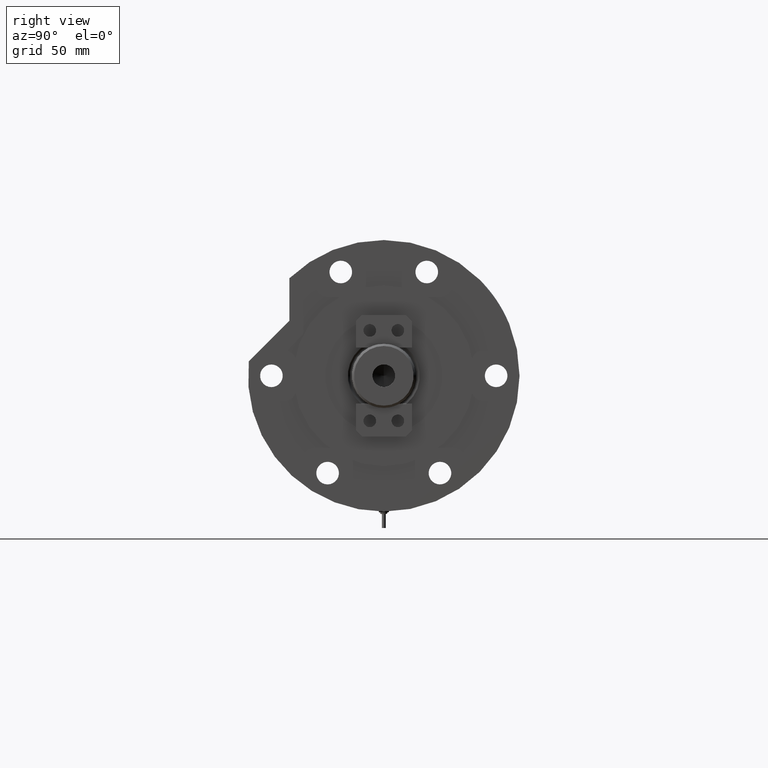
[diagram: clean part render]
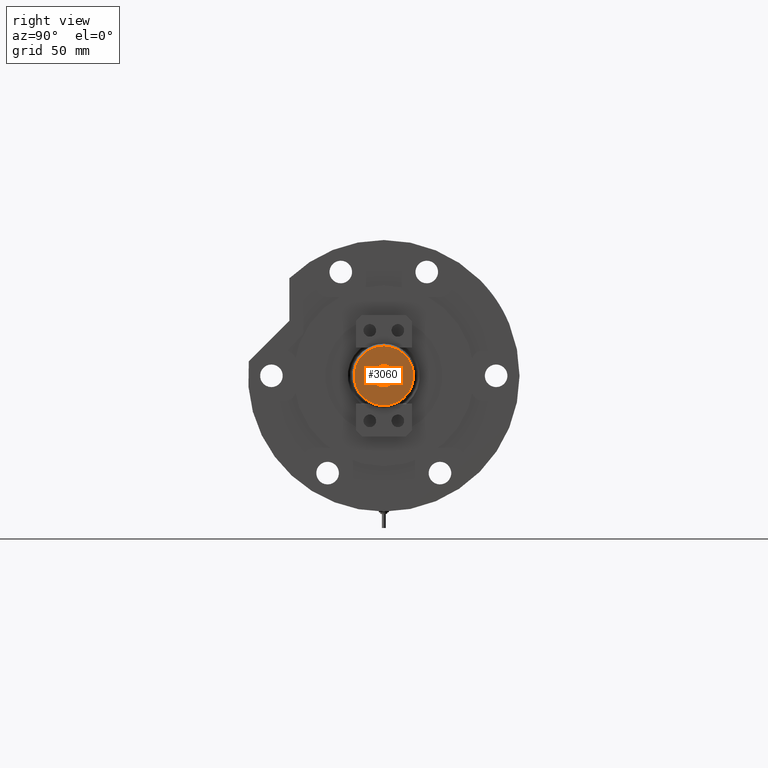
[diagram: same view with one face highlighted and labeled with its STEP entity id]
A machine part, right view. The second image highlights one B-rep face of the part: STEP entity #3060.
In plain terms, the highlighted planar face has unit normal (1, 0, -0).
Its self-contained STEP definition (entity closure, byte-faithful):
#64 = DIRECTION ( 'NONE',  ( 1.000000000000000000, 0.000000000000000000, 0.000000000000000000 ) ) ;
#462 = CIRCLE ( 'NONE', #7021, 7.249999999999999112 ) ;
#465 = CARTESIAN_POINT ( 'NONE',  ( 7.249999999999999112, 0.000000000000000000, 353.3000000000000114 ) ) ;
#467 = DIRECTION ( 'NONE',  ( 1.000000000000000000, 0.000000000000000000, 0.000000000000000000 ) ) ;
#662 = VERTEX_POINT ( 'NONE', #2108 ) ;
#696 = DIRECTION ( 'NONE',  ( -0.000000000000000000, -0.000000000000000000, 1.000000000000000000 ) ) ;
#837 = CIRCLE ( 'NONE', #1914, 19.10000000000000497 ) ;
#1320 = CARTESIAN_POINT ( 'NONE',  ( 0.000000000000000000, 0.000000000000000000, 353.3000000000000114 ) ) ;
#1854 = CIRCLE ( 'NONE', #2370, 19.10000000000000497 ) ;
#1914 = AXIS2_PLACEMENT_3D ( 'NONE', #2664, #2165, #4596 ) ;
#2091 = ORIENTED_EDGE ( 'NONE', *, *, #6346, .F. ) ;
#2108 = CARTESIAN_POINT ( 'NONE',  ( 19.10000000000000497, 2.424800662311759799E-15, 353.3000000000000114 ) ) ;
#2165 = DIRECTION ( 'NONE',  ( 0.000000000000000000, 0.000000000000000000, 1.000000000000000000 ) ) ;
#2370 = AXIS2_PLACEMENT_3D ( 'NONE', #1320, #5805, #64 ) ;
#2573 = DIRECTION ( 'NONE',  ( 1.000000000000000000, 0.000000000000000000, 0.000000000000000000 ) ) ;
#2664 = CARTESIAN_POINT ( 'NONE',  ( 0.000000000000000000, 0.000000000000000000, 353.3000000000000114 ) ) ;
#2927 = VERTEX_POINT ( 'NONE', #7327 ) ;
#3060 = ADVANCED_FACE ( 'NONE', ( #5720, #8280 ), #7065, .T. ) ;
#3369 = AXIS2_PLACEMENT_3D ( 'NONE', #3868, #7150, #6557 ) ;
#3639 = AXIS2_PLACEMENT_3D ( 'NONE', #5454, #4937, #467 ) ;
#3868 = CARTESIAN_POINT ( 'NONE',  ( 0.000000000000000000, 0.000000000000000000, 353.3000000000000114 ) ) ;
#3887 = VERTEX_POINT ( 'NONE', #7367 ) ;
#4274 = ORIENTED_EDGE ( 'NONE', *, *, #4762, .F. ) ;
#4596 = DIRECTION ( 'NONE',  ( 1.000000000000000000, 0.000000000000000000, 0.000000000000000000 ) ) ;
#4762 = EDGE_CURVE ( 'NONE', #7293, #3887, #8198, .T. ) ;
#4889 = ORIENTED_EDGE ( 'NONE', *, *, #5046, .T. ) ;
#4937 = DIRECTION ( 'NONE',  ( -0.000000000000000000, -0.000000000000000000, 1.000000000000000000 ) ) ;
#5046 = EDGE_CURVE ( 'NONE', #2927, #662, #837, .T. ) ;
#5275 = EDGE_LOOP ( 'NONE', ( #4889, #6778 ) ) ;
#5454 = CARTESIAN_POINT ( 'NONE',  ( 0.000000000000000000, 0.000000000000000000, 353.3000000000000114 ) ) ;
#5720 = FACE_OUTER_BOUND ( 'NONE', #5275, .T. ) ;
#5805 = DIRECTION ( 'NONE',  ( 0.000000000000000000, 0.000000000000000000, 1.000000000000000000 ) ) ;
#6346 = EDGE_CURVE ( 'NONE', #3887, #7293, #462, .T. ) ;
#6557 = DIRECTION ( 'NONE',  ( 1.000000000000000000, 0.000000000000000000, -0.000000000000000000 ) ) ;
#6778 = ORIENTED_EDGE ( 'NONE', *, *, #7939, .T. ) ;
#6852 = EDGE_LOOP ( 'NONE', ( #4274, #2091 ) ) ;
#7021 = AXIS2_PLACEMENT_3D ( 'NONE', #8286, #696, #2573 ) ;
#7065 = PLANE ( 'NONE',  #3369 ) ;
#7150 = DIRECTION ( 'NONE',  ( 0.000000000000000000, 0.000000000000000000, 1.000000000000000000 ) ) ;
#7293 = VERTEX_POINT ( 'NONE', #465 ) ;
#7327 = CARTESIAN_POINT ( 'NONE',  ( -19.10000000000000497, 0.000000000000000000, 353.3000000000000114 ) ) ;
#7367 = CARTESIAN_POINT ( 'NONE',  ( -7.249999999999999112, 8.878689293818310074E-16, 353.3000000000000114 ) ) ;
#7939 = EDGE_CURVE ( 'NONE', #662, #2927, #1854, .T. ) ;
#8198 = CIRCLE ( 'NONE', #3639, 7.249999999999999112 ) ;
#8280 = FACE_BOUND ( 'NONE', #6852, .T. ) ;
#8286 = CARTESIAN_POINT ( 'NONE',  ( 0.000000000000000000, 0.000000000000000000, 353.3000000000000114 ) ) ;